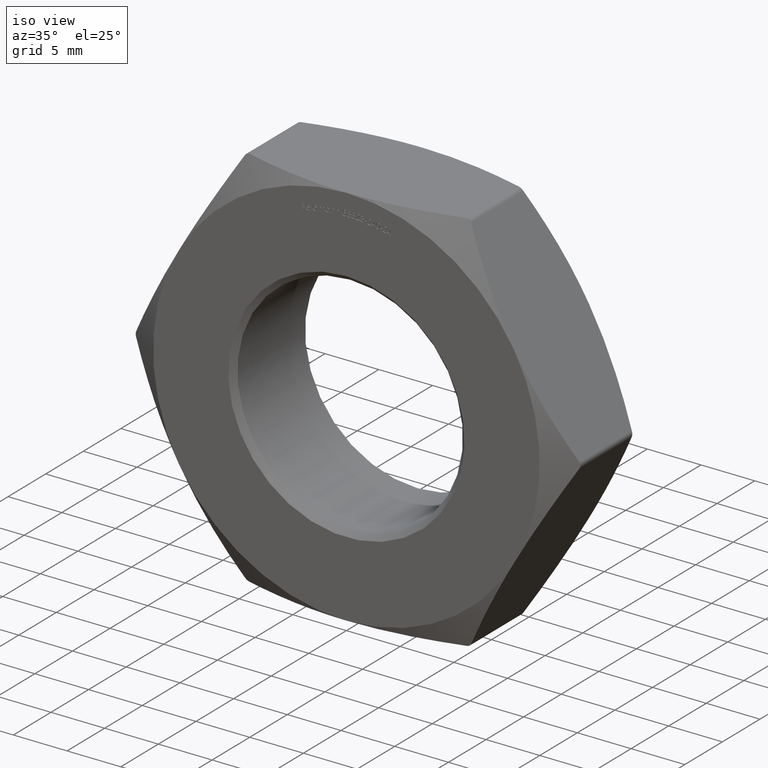
[diagram: clean part render]
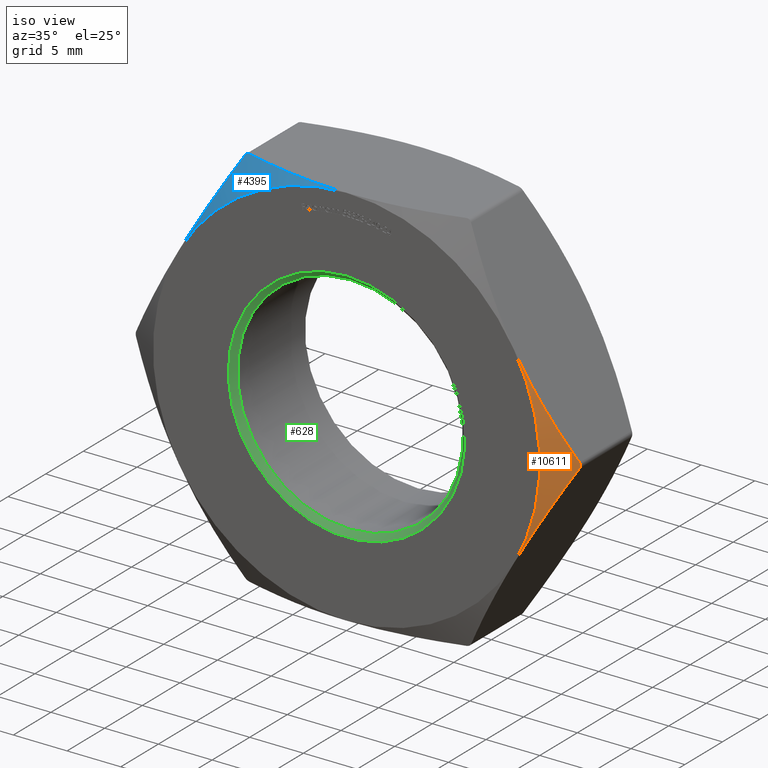
[diagram: same view with three faces highlighted in distinct colors, each labeled with its STEP entity id]
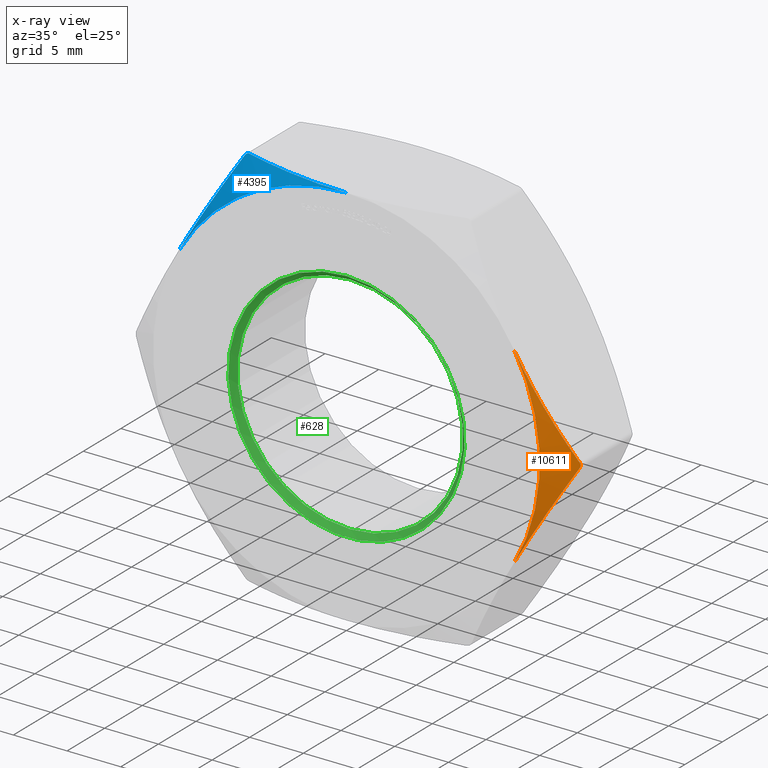
[diagram: x-ray of the same camera — body ghosted, the three highlighted faces saturated]
A machine part, iso view with three faces highlighted in distinct colors.
The next image is the same camera in x-ray (body ghosted, the three faces saturated) — at least one of them is partly hidden behind the body in this view.
Their STEP definitions:

[orange] entity #10611 — the highlighted conical surface has half-angle 60 deg.
#323 = B_SPLINE_CURVE_WITH_KNOTS ( 'NONE', 3,
 ( #11239, #4997, #6298, #15124, #8787, #3832, #8842, #7619, #1215, #4677 ),
 .UNSPECIFIED., .F., .F.,
 ( 4, 2, 2, 2, 4 ),
 ( 0.01051554819734980099, 0.01178791190731938790, 0.01306027561728897307, 0.01560500303722814341, 0.02069445787710648063 ),
 .UNSPECIFIED. ) ;
#1086 = VERTEX_POINT ( 'NONE', #12557 ) ;
#1178 = CARTESIAN_POINT ( 'NONE',  ( 20.70717893252964004, -3.437008392479882435, -0.08860865200605945458 ) ) ;
#1215 = CARTESIAN_POINT ( 'NONE',  ( 19.81562494357227777, -3.940851841110031728, 1.678330814003634375 ) ) ;
#1619 = DIRECTION ( 'NONE',  ( -0.000000000000000000, -1.000000000000000000, -0.000000000000000000 ) ) ;
#2120 = DIRECTION ( 'NONE',  ( 1.000000000000000000, 0.000000000000000000, 0.000000000000000000 ) ) ;
#2523 = CARTESIAN_POINT ( 'NONE',  ( 20.68318184697213979, -3.450511656492895707, 0.1756781788579609704 ) ) ;
#3244 = VERTEX_POINT ( 'NONE', #8180 ) ;
#3345 = CARTESIAN_POINT ( 'NONE',  ( 9.549475979406495715E-17, -5.000000000000000000, 0.000000000000000000 ) ) ;
#3388 = AXIS2_PLACEMENT_3D ( 'NONE', #11578, #1619, #5376 ) ;
#3634 = CARTESIAN_POINT ( 'NONE',  ( 20.68316535159770453, -3.450520979621836570, -0.1757067496845792776 ) ) ;
#3832 = CARTESIAN_POINT ( 'NONE',  ( 17.29911597758648512, -4.825147480787580712, 6.037052200793660006 ) ) ;
#3954 = CARTESIAN_POINT ( 'NONE',  ( 19.81360279745488029, -3.941994751156218779, -1.681833273819306029 ) ) ;
#4119 = EDGE_LOOP ( 'NONE', ( #5804, #4840, #11790, #7321 ) ) ;
#4129 = CARTESIAN_POINT ( 'NONE',  ( 20.64027212352926099, -3.474764084930033192, -0.2499999999997611078 ) ) ;
#4677 = CARTESIAN_POINT ( 'NONE',  ( 20.64027212352912244, -3.474764084930112240, 0.2499999999999959477 ) ) ;
#4840 = ORIENTED_EDGE ( 'NONE', *, *, #12421, .T. ) ;
#4997 = CARTESIAN_POINT ( 'NONE',  ( 15.80269449085430722, -4.999999999999999112, 8.628930245351545736 ) ) ;
#5008 = CARTESIAN_POINT ( 'NONE',  ( 20.64027212352912244, -3.474764084930112240, 0.2499999999999959477 ) ) ;
#5376 = DIRECTION ( 'NONE',  ( 1.776356839400250465E-15, 0.000000000000000000, 1.000000000000000000 ) ) ;
#5422 = CARTESIAN_POINT ( 'NONE',  ( 18.98092775833401191, -4.325605780329636829, -3.124068747771052035 ) ) ;
#5804 = ORIENTED_EDGE ( 'NONE', *, *, #10442, .F. ) ;
#6298 = CARTESIAN_POINT ( 'NONE',  ( 16.01798673103119697, -4.991100823725131086, 8.256033146889848240 ) ) ;
#6476 = EDGE_CURVE ( 'NONE', #3244, #16032, #9386, .T. ) ;
#6548 = B_SPLINE_CURVE_WITH_KNOTS ( 'NONE', 3,
 ( #4129, #3954, #5422, #11450, #15444, #10248 ),
 .UNSPECIFIED., .F., .F.,
 ( 4, 2, 4 ),
 ( 0.0002977047320976027901, 0.005406626464723701675, 0.01051554819734979926 ),
 .UNSPECIFIED. ) ;
#7321 = ORIENTED_EDGE ( 'NONE', *, *, #6476, .F. ) ;
#7365 = CARTESIAN_POINT ( 'NONE',  ( 20.64027212352926099, -3.474764084930033192, -0.2499999999997611078 ) ) ;
#7619 = CARTESIAN_POINT ( 'NONE',  ( 18.98413308608382977, -4.324295589834002307, 3.118516957253463229 ) ) ;
#8180 = CARTESIAN_POINT ( 'NONE',  ( 15.58845726811989252, -5.000000000000000000, -9.000000000000001776 ) ) ;
#8787 = CARTESIAN_POINT ( 'NONE',  ( 16.66031262789973866, -4.929390122363202842, 7.143492058496283548 ) ) ;
#8810 = CARTESIAN_POINT ( 'NONE',  ( 20.64027212352912244, -3.474764084930112240, 0.2499999999999959477 ) ) ;
#8842 = CARTESIAN_POINT ( 'NONE',  ( 17.72221016899749557, -4.722150001668016905, 5.304231564882509353 ) ) ;
#9386 = CIRCLE ( 'NONE', #3388, 17.99999999999999645 ) ;
#9436 = EDGE_CURVE ( 'NONE', #16032, #14216, #323, .T. ) ;
#10248 = CARTESIAN_POINT ( 'NONE',  ( 15.58845726811989252, -5.000000000000000000, -9.000000000000001776 ) ) ;
#10442 = EDGE_CURVE ( 'NONE', #1086, #3244, #6548, .T. ) ;
#10611 = ADVANCED_FACE ( 'NONE', ( #11457 ), #16326, .T. ) ;
#10926 = CARTESIAN_POINT ( 'NONE',  ( 15.58845726811989607, -5.000000000000000000, 8.999999999999996447 ) ) ;
#11239 = CARTESIAN_POINT ( 'NONE',  ( 15.58845726811989607, -5.000000000000000000, 8.999999999999996447 ) ) ;
#11450 = CARTESIAN_POINT ( 'NONE',  ( 17.29852708824104823, -4.855426502465716609, -6.038072187060000928 ) ) ;
#11457 = FACE_OUTER_BOUND ( 'NONE', #4119, .T. ) ;
#11578 = CARTESIAN_POINT ( 'NONE',  ( 9.549475979406495715E-17, -5.000000000000000000, 5.954463929516699050E-16 ) ) ;
#11790 = ORIENTED_EDGE ( 'NONE', *, *, #9436, .F. ) ;
#12421 = EDGE_CURVE ( 'NONE', #1086, #14216, #14373, .T. ) ;
#12557 = CARTESIAN_POINT ( 'NONE',  ( 20.64027212352926099, -3.474764084930033192, -0.2499999999997611078 ) ) ;
#13184 = AXIS2_PLACEMENT_3D ( 'NONE', #3345, #15940, #2120 ) ;
#13751 = CARTESIAN_POINT ( 'NONE',  ( 20.70733949605147828, -3.436917929465521215, 0.08769794612802372935 ) ) ;
#14216 = VERTEX_POINT ( 'NONE', #8810 ) ;
#14373 = B_SPLINE_CURVE_WITH_KNOTS ( 'NONE', 3,
 ( #7365, #3634, #1178, #13751, #2523, #5008 ),
 .UNSPECIFIED., .F., .F.,
 ( 4, 2, 4 ),
 ( 2.746530905111593069E-16, 0.0002639256828971713520, 0.0005278513657940680755 ),
 .UNSPECIFIED. ) ;
#15124 = CARTESIAN_POINT ( 'NONE',  ( 16.44668568854906354, -4.955776413173640371, 7.513504771317089492 ) ) ;
#15444 = CARTESIAN_POINT ( 'NONE',  ( 16.44868394276425150, -4.999999999999998224, -7.510043693489956595 ) ) ;
#15940 = DIRECTION ( 'NONE',  ( -1.909895195881299143E-17, 1.000000000000000000, -0.000000000000000000 ) ) ;
#16032 = VERTEX_POINT ( 'NONE', #10926 ) ;
#16326 = CONICAL_SURFACE ( 'NONE', #13184, 18.00000000000000000, 1.047197551196603404 ) ;

[blue] entity #4395 — the highlighted conical surface has half-angle 60 deg.
#8 = CARTESIAN_POINT ( 'NONE',  ( -10.10362971081869254, -3.474764084930046515, 18.00000000000000000 ) ) ;
#1031 = CARTESIAN_POINT ( 'NONE',  ( -12.19278145015596237, -4.324295589834004083, 14.88148304274652922 ) ) ;
#1135 = CARTESIAN_POINT ( 'NONE',  ( -8.457975102652094179, -3.939823253511489209, 18.00000000000000355 ) ) ;
#1155 = ORIENTED_EDGE ( 'NONE', *, *, #14465, .T. ) ;
#1238 = ORIENTED_EDGE ( 'NONE', *, *, #1642, .F. ) ;
#1488 = FACE_OUTER_BOUND ( 'NONE', #15160, .T. ) ;
#1581 = CARTESIAN_POINT ( 'NONE',  ( 9.549475979406495715E-17, -5.000000000000000000, 18.00000000000000000 ) ) ;
#1642 = EDGE_CURVE ( 'NONE', #5722, #7053, #6084, .T. ) ;
#1686 = CARTESIAN_POINT ( 'NONE',  ( 9.549475979406495715E-17, -5.000000000000000000, 5.954463929516699050E-16 ) ) ;
#2287 = CARTESIAN_POINT ( 'NONE',  ( -10.27685212263245873, -3.437008392479888208, 17.97724732228363820 ) ) ;
#2395 = CARTESIAN_POINT ( 'NONE',  ( -10.53664241271066793, -3.474764084930117125, 17.74999999999999645 ) ) ;
#2498 = CIRCLE ( 'NONE', #8008, 17.99999999999999645 ) ;
#3138 = B_SPLINE_CURVE_WITH_KNOTS ( 'NONE', 3,
 ( #13543, #1135, #6010, #14818, #13637, #9749 ),
 .UNSPECIFIED., .F., .F.,
 ( 4, 2, 4 ),
 ( 0.01884018440282779136, 0.02394736763337025967, 0.02905455086391272798 ),
 .UNSPECIFIED. ) ;
#3494 = CARTESIAN_POINT ( 'NONE',  ( -13.45470436724229124, -4.722150001668020458, 12.69576843511748088 ) ) ;
#3564 = CARTESIAN_POINT ( 'NONE',  ( -10.18941616695562580, -3.450520979621849893, 17.99999999999999645 ) ) ;
#4395 = ADVANCED_FACE ( 'NONE', ( #1488 ), #11145, .T. ) ;
#4443 = AXIS2_PLACEMENT_3D ( 'NONE', #7912, #5498, #14085 ) ;
#4722 = CARTESIAN_POINT ( 'NONE',  ( -10.53664241271066793, -3.474764084930117125, 17.74999999999999645 ) ) ;
#4942 = CARTESIAN_POINT ( 'NONE',  ( -10.10362971081869254, -3.474764084930046515, 18.00000000000000000 ) ) ;
#5498 = DIRECTION ( 'NONE',  ( -1.909895195881299143E-17, 1.000000000000000000, -0.000000000000000000 ) ) ;
#5700 = ORIENTED_EDGE ( 'NONE', *, *, #5861, .F. ) ;
#5722 = VERTEX_POINT ( 'NONE', #7434 ) ;
#5861 = EDGE_CURVE ( 'NONE', #7045, #5722, #2498, .T. ) ;
#6010 = CARTESIAN_POINT ( 'NONE',  ( -6.774121896686201794, -4.328012222079794746, 18.00000000000000000 ) ) ;
#6084 = B_SPLINE_CURVE_WITH_KNOTS ( 'NONE', 3,
 ( #8541, #13498, #7228, #12169, #13445, #11005, #3494, #1031, #15977, #4722 ),
 .UNSPECIFIED., .F., .F.,
 ( 4, 2, 2, 2, 4 ),
 ( 0.01051554819734979752, 0.01178791190731938270, 0.01306027561728896787, 0.01560500303722813648, 0.02069445787710647716 ),
 .UNSPECIFIED. ) ;
#7045 = VERTEX_POINT ( 'NONE', #1581 ) ;
#7053 = VERTEX_POINT ( 'NONE', #10228 ) ;
#7228 = CARTESIAN_POINT ( 'NONE',  ( -15.15892780520859340, -4.991100823725133750, 9.743966853110142878 ) ) ;
#7434 = CARTESIAN_POINT ( 'NONE',  ( -15.58845726811989429, -5.000000000000000000, 9.000000000000000000 ) ) ;
#7532 = EDGE_CURVE ( 'NONE', #8284, #7045, #3138, .T. ) ;
#7912 = CARTESIAN_POINT ( 'NONE',  ( 9.549475979406495715E-17, -5.000000000000000000, 0.000000000000000000 ) ) ;
#8008 = AXIS2_PLACEMENT_3D ( 'NONE', #1686, #14298, #10260 ) ;
#8284 = VERTEX_POINT ( 'NONE', #4942 ) ;
#8541 = CARTESIAN_POINT ( 'NONE',  ( -15.58845726811989429, -5.000000000000000000, 9.000000000000000000 ) ) ;
#9749 = CARTESIAN_POINT ( 'NONE',  ( 9.549475979406495715E-17, -5.000000000000000000, 18.00000000000000000 ) ) ;
#9934 = ORIENTED_EDGE ( 'NONE', *, *, #7532, .F. ) ;
#9991 = CARTESIAN_POINT ( 'NONE',  ( -10.42961839723232309, -3.436917929465522992, 17.88923307530542317 ) ) ;
#10228 = CARTESIAN_POINT ( 'NONE',  ( -10.53664241271066793, -3.474764084930117125, 17.74999999999999645 ) ) ;
#10260 = DIRECTION ( 'NONE',  ( 0.000000000000000000, 0.000000000000000000, 1.000000000000000000 ) ) ;
#11005 = CARTESIAN_POINT ( 'NONE',  ( -13.87779855865330703, -4.825147480787583376, 11.96294779920633644 ) ) ;
#11145 = CONICAL_SURFACE ( 'NONE', #4443, 18.00000000000000000, 1.047197551196603404 ) ;
#11525 = B_SPLINE_CURVE_WITH_KNOTS ( 'NONE', 3,
 ( #8, #3564, #2287, #9991, #15013, #2395 ),
 .UNSPECIFIED., .F., .F.,
 ( 4, 2, 4 ),
 ( 2.364591000878935656E-16, 0.0002639256828971538421, 0.0005278513657940712197 ),
 .UNSPECIFIED. ) ;
#12169 = CARTESIAN_POINT ( 'NONE',  ( -14.73022884769072327, -4.955776413173643036, 10.48649522868290340 ) ) ;
#13445 = CARTESIAN_POINT ( 'NONE',  ( -14.51660190834004993, -4.929390122363204618, 10.85650794150370579 ) ) ;
#13498 = CARTESIAN_POINT ( 'NONE',  ( -15.37422004538547959, -5.000000000000002665, 9.371069754648450711 ) ) ;
#13543 = CARTESIAN_POINT ( 'NONE',  ( -10.10362971081869254, -3.474764084930046515, 18.00000000000000000 ) ) ;
#13637 = CARTESIAN_POINT ( 'NONE',  ( -1.706192962091411802, -5.000000000000000000, 18.00000000000000000 ) ) ;
#14085 = DIRECTION ( 'NONE',  ( 1.000000000000000000, 0.000000000000000000, 0.000000000000000000 ) ) ;
#14298 = DIRECTION ( 'NONE',  ( -0.000000000000000000, -1.000000000000000000, -0.000000000000000000 ) ) ;
#14465 = EDGE_CURVE ( 'NONE', #8284, #7053, #11525, .T. ) ;
#14818 = CARTESIAN_POINT ( 'NONE',  ( -3.401654881210686376, -4.857628102643605672, 18.00000000000000000 ) ) ;
#15013 = CARTESIAN_POINT ( 'NONE',  ( -10.49373268926765057, -3.450511656492895263, 17.82432182114203556 ) ) ;
#15160 = EDGE_LOOP ( 'NONE', ( #9934, #1155, #1238, #5700 ) ) ;
#15977 = CARTESIAN_POINT ( 'NONE',  ( -11.36128959266750371, -3.940851841110031728, 16.32166918599634897 ) ) ;

[green] entity #628 — the highlighted conical surface has half-angle 45 deg.
#628 = ADVANCED_FACE ( 'NONE', ( #8050, #13762 ), #10388, .F. ) ;
#757 = DIRECTION ( 'NONE',  ( 0.000000000000000000, 0.000000000000000000, 1.000000000000000000 ) ) ;
#1824 = CIRCLE ( 'NONE', #1903, 10.99999999999998934 ) ;
#1903 = AXIS2_PLACEMENT_3D ( 'NONE', #3171, #6967, #3119 ) ;
#1930 = CARTESIAN_POINT ( 'NONE',  ( 0.000000000000000000, -4.500000000000007994, 0.000000000000000000 ) ) ;
#2357 = ORIENTED_EDGE ( 'NONE', *, *, #3706, .F. ) ;
#2689 = ORIENTED_EDGE ( 'NONE', *, *, #9366, .F. ) ;
#3119 = DIRECTION ( 'NONE',  ( 0.000000000000000000, 0.000000000000000000, 1.000000000000000000 ) ) ;
#3171 = CARTESIAN_POINT ( 'NONE',  ( 0.000000000000000000, -5.000000000000000000, 0.000000000000000000 ) ) ;
#3174 = DIRECTION ( 'NONE',  ( -0.000000000000000000, -1.000000000000000000, -0.000000000000000000 ) ) ;
#3682 = EDGE_LOOP ( 'NONE', ( #2357 ) ) ;
#3706 = EDGE_CURVE ( 'NONE', #7348, #7348, #14317, .T. ) ;
#4393 = CARTESIAN_POINT ( 'NONE',  ( 0.000000000000000000, -4.500000000000007994, 10.49999999999999822 ) ) ;
#5778 = AXIS2_PLACEMENT_3D ( 'NONE', #13239, #3174, #9464 ) ;
#6967 = DIRECTION ( 'NONE',  ( 0.000000000000000000, 1.000000000000000000, 0.000000000000000000 ) ) ;
#7348 = VERTEX_POINT ( 'NONE', #4393 ) ;
#8050 = FACE_BOUND ( 'NONE', #3682, .T. ) ;
#8329 = DIRECTION ( 'NONE',  ( -0.000000000000000000, -1.000000000000000000, -0.000000000000000000 ) ) ;
#8358 = VERTEX_POINT ( 'NONE', #9445 ) ;
#9366 = EDGE_CURVE ( 'NONE', #8358, #8358, #1824, .T. ) ;
#9445 = CARTESIAN_POINT ( 'NONE',  ( 0.000000000000000000, -5.000000000000000000, 10.99999999999998934 ) ) ;
#9464 = DIRECTION ( 'NONE',  ( 0.000000000000000000, 0.000000000000000000, -1.000000000000000000 ) ) ;
#10388 = CONICAL_SURFACE ( 'NONE', #5778, 10.99999999999998934, 0.7853981633974466137 ) ;
#11227 = EDGE_LOOP ( 'NONE', ( #2689 ) ) ;
#12102 = AXIS2_PLACEMENT_3D ( 'NONE', #1930, #8329, #757 ) ;
#13239 = CARTESIAN_POINT ( 'NONE',  ( 0.000000000000000000, -5.000000000000000000, 0.000000000000000000 ) ) ;
#13762 = FACE_OUTER_BOUND ( 'NONE', #11227, .T. ) ;
#14317 = CIRCLE ( 'NONE', #12102, 10.49999999999999822 ) ;